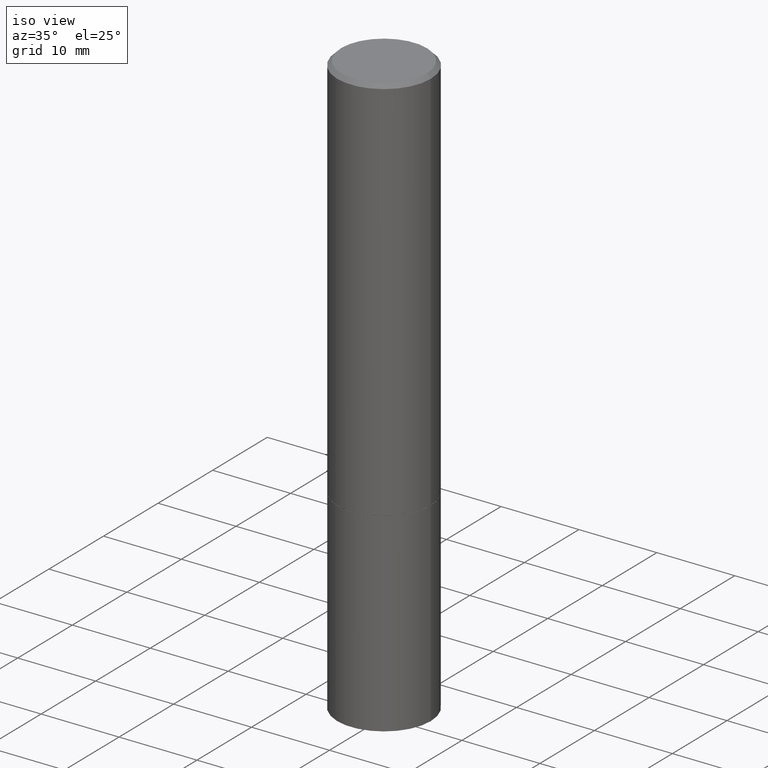
[diagram: clean part render]
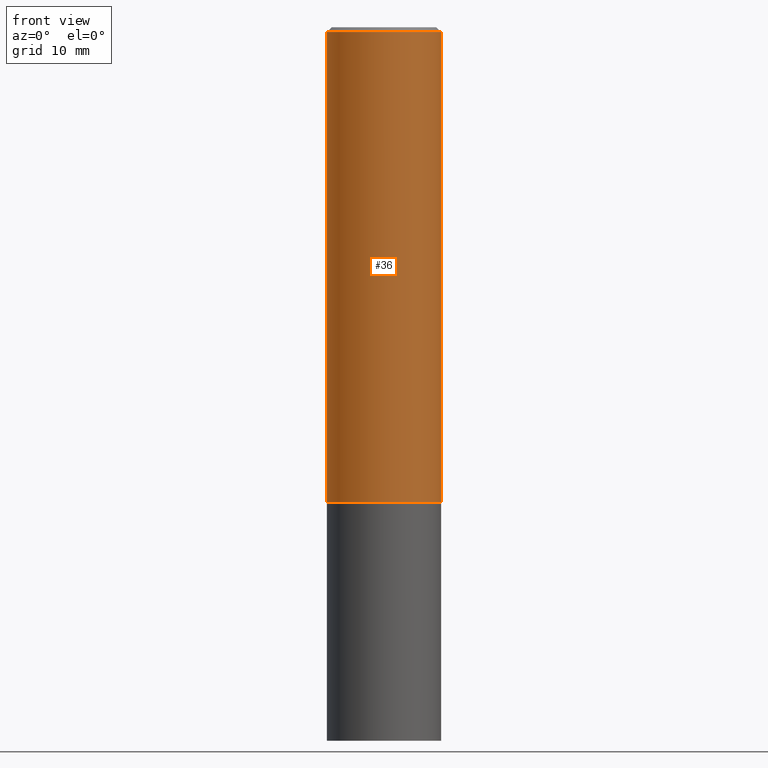
[diagram: tour spotlight — one face highlighted and labeled with its STEP entity id]
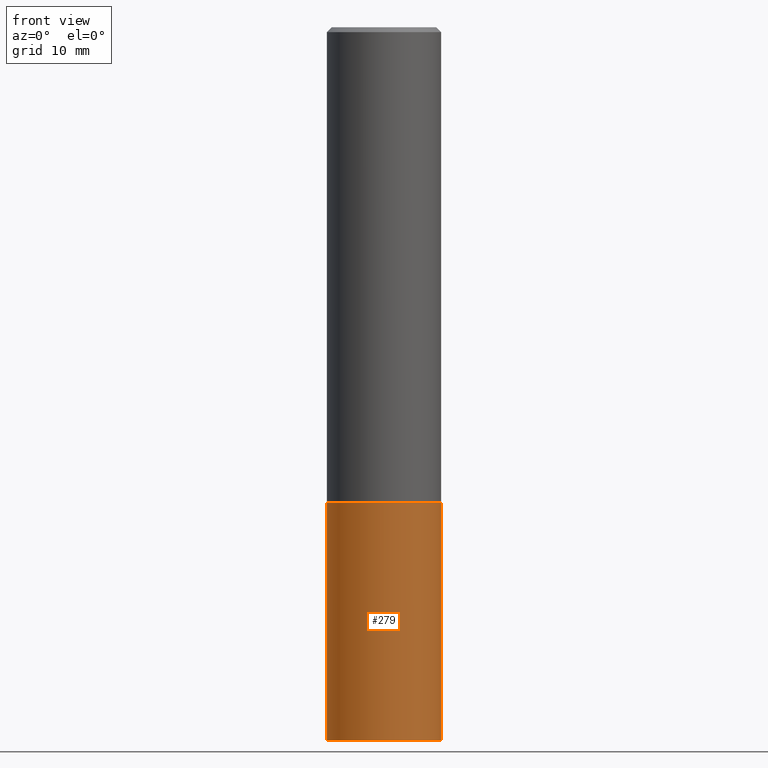
[diagram: tour spotlight — one face highlighted and labeled with its STEP entity id]
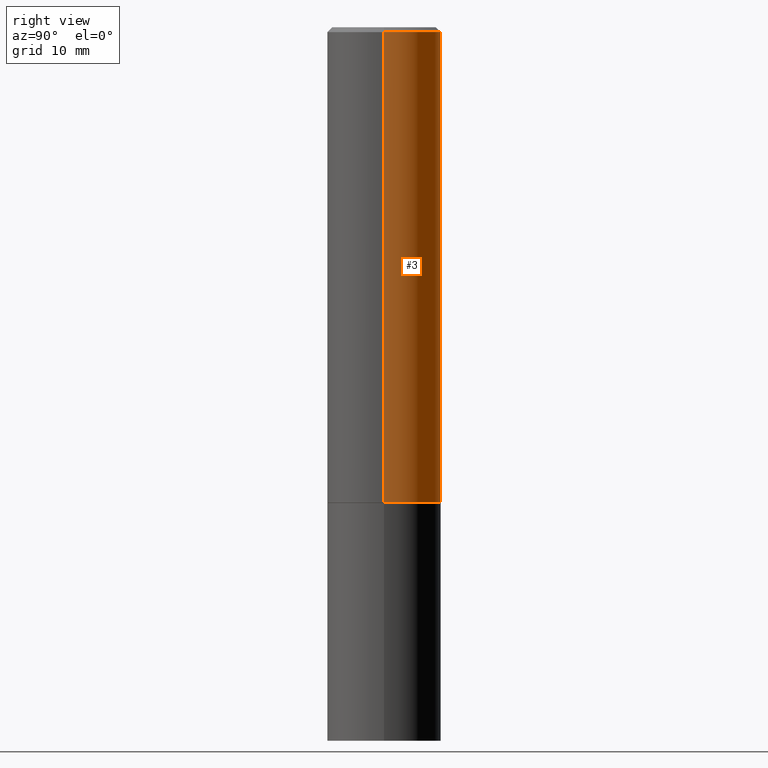
[diagram: tour spotlight — one face highlighted and labeled with its STEP entity id]
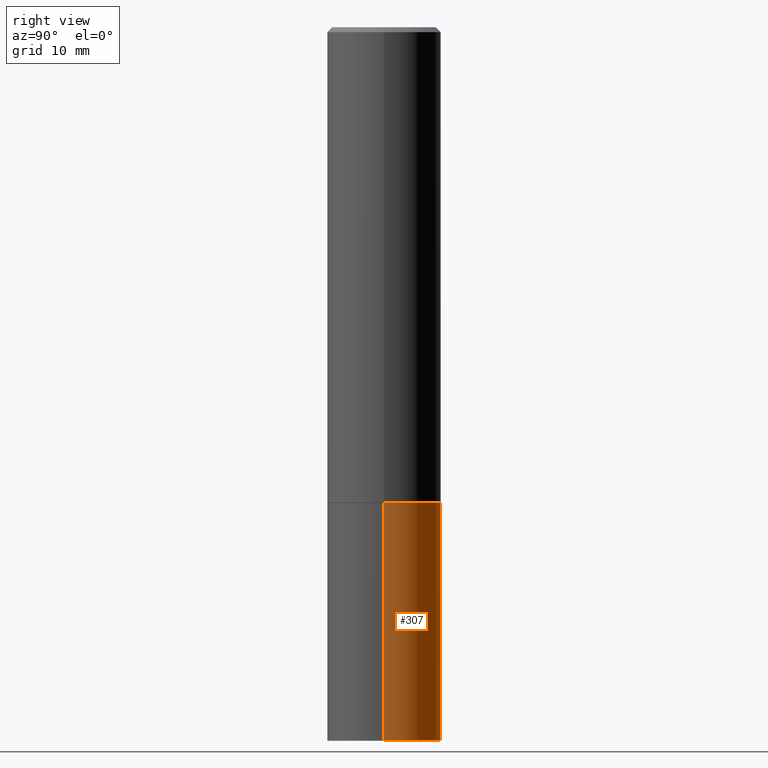
[diagram: tour spotlight — one face highlighted and labeled with its STEP entity id]
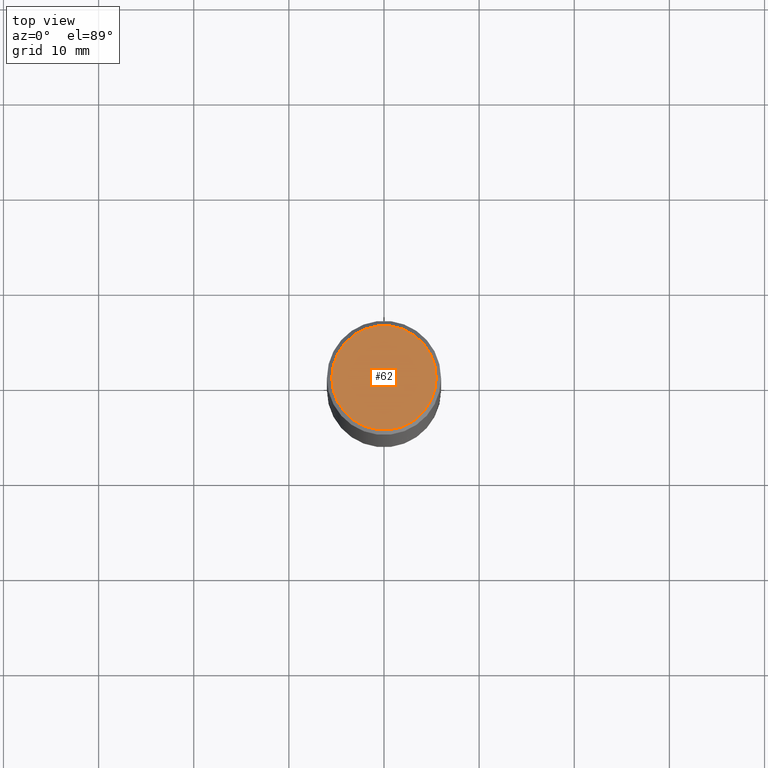
[diagram: tour spotlight — one face highlighted and labeled with its STEP entity id]
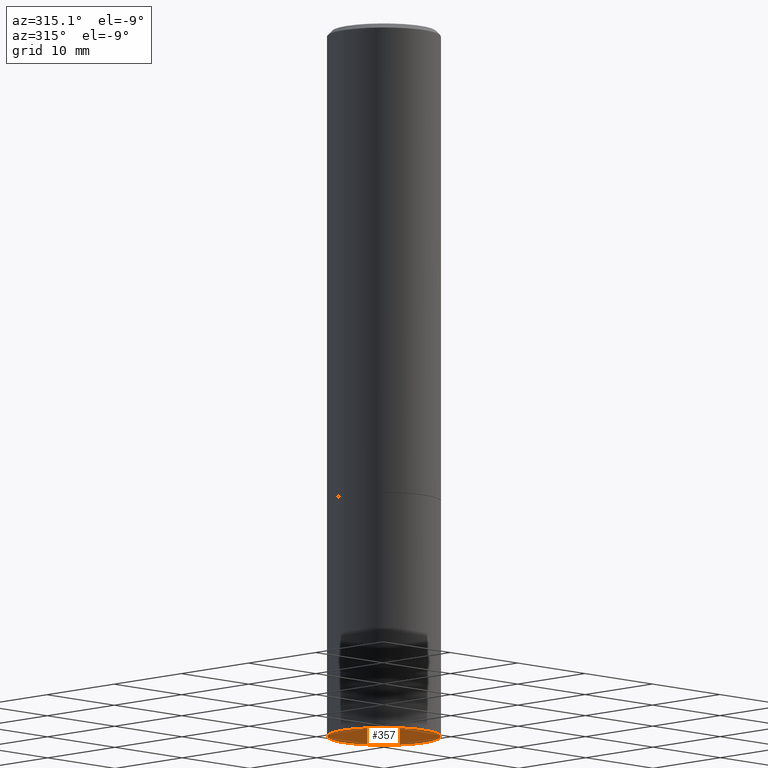
[diagram: tour spotlight — one face highlighted and labeled with its STEP entity id]
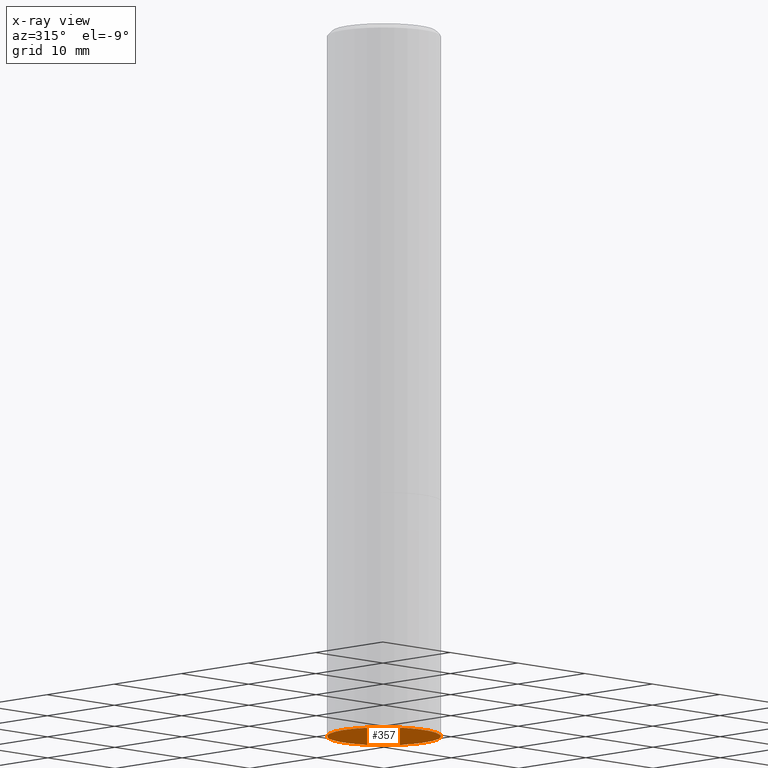
[diagram: x-ray of the same camera — body ghosted, this tour face saturated]
A machine part: a face-by-face anatomy tour. The part has 12 B-rep faces; the first image is the clean iso view, then the 6 largest visible faces are spotlighted one at a time (largest first), each with its STEP entity span.

Face 1 — front view, entity #36. In plain terms, the highlighted cylindrical surface (partial cylindrical patch) has radius 5.9995 mm, axis along (-0, 0, 1).
Definition (entity closure, byte-faithful):
#9 = LINE ( 'NONE', #290, #26 ) ;
#26 = VECTOR ( 'NONE', #119, 39.37007874015748143 ) ;
#36 = ADVANCED_FACE ( 'NONE', ( #64 ), #139, .T. ) ;
#49 = VERTEX_POINT ( 'NONE', #201 ) ;
#54 = CARTESIAN_POINT ( 'NONE',  ( -0.2361999999999999933, -1.791357638610017633E-15, -1.967499999999999805 ) ) ;
#57 = AXIS2_PLACEMENT_3D ( 'NONE', #90, #258, #323 ) ;
#64 = FACE_OUTER_BOUND ( 'NONE', #136, .T. ) ;
#65 = CIRCLE ( 'NONE', #235, 0.2361999999999999933 ) ;
#67 = DIRECTION ( 'NONE',  ( -2.445468806185136597E-29, 3.491481338843145583E-15, 1.000000000000000000 ) ) ;
#80 = EDGE_CURVE ( 'NONE', #251, #49, #351, .T. ) ;
#88 = EDGE_CURVE ( 'NONE', #324, #251, #9, .T. ) ;
#90 = CARTESIAN_POINT ( 'NONE',  ( 0.000000000000000000, 0.000000000000000000, 0.000000000000000000 ) ) ;
#106 = VERTEX_POINT ( 'NONE', #197 ) ;
#119 = DIRECTION ( 'NONE',  ( -2.445468806185136877E-29, 3.491481338843145188E-15, 1.000000000000000000 ) ) ;
#121 = LINE ( 'NONE', #124, #237 ) ;
#124 = CARTESIAN_POINT ( 'NONE',  ( 0.2361999999999998823, -1.649375784469495539E-15, 1.151752954442999528E-29 ) ) ;
#135 = EDGE_CURVE ( 'NONE', #324, #106, #65, .T. ) ;
#136 = EDGE_LOOP ( 'NONE', ( #242, #249, #364, #350 ) ) ;
#139 = CYLINDRICAL_SURFACE ( 'NONE', #57, 0.2361999999999998823 ) ;
#150 = DIRECTION ( 'NONE',  ( 1.000000000000000000, -6.982962677686266711E-15, 0.000000000000000000 ) ) ;
#185 = EDGE_CURVE ( 'NONE', #106, #49, #121, .T. ) ;
#197 = CARTESIAN_POINT ( 'NONE',  ( 0.2361999999999999933, -8.518865318643383648E-15, -1.967499999999999805 ) ) ;
#201 = CARTESIAN_POINT ( 'NONE',  ( 0.2361999999999997990, -1.690279253850497391E-15, -0.02000000000000007674 ) ) ;
#205 = DIRECTION ( 'NONE',  ( 1.000000000000000000, -6.982962677686269077E-15, 0.000000000000000000 ) ) ;
#235 = AXIS2_PLACEMENT_3D ( 'NONE', #333, #67, #205 ) ;
#237 = VECTOR ( 'NONE', #265, 39.37007874015748143 ) ;
#242 = ORIENTED_EDGE ( 'NONE', *, *, #88, .F. ) ;
#249 = ORIENTED_EDGE ( 'NONE', *, *, #135, .T. ) ;
#251 = VERTEX_POINT ( 'NONE', #310 ) ;
#254 = DIRECTION ( 'NONE',  ( -2.445468806185136597E-29, 3.491481338843145583E-15, 1.000000000000000000 ) ) ;
#258 = DIRECTION ( 'NONE',  ( -2.445468806185136597E-29, 3.491481338843145583E-15, 1.000000000000000000 ) ) ;
#261 = CARTESIAN_POINT ( 'NONE',  ( 4.890937612370292426E-31, -6.982962677686317493E-17, -0.02000000000000007674 ) ) ;
#265 = DIRECTION ( 'NONE',  ( -2.445468806185136877E-29, 3.491481338843145188E-15, 1.000000000000000000 ) ) ;
#276 = AXIS2_PLACEMENT_3D ( 'NONE', #261, #254, #150 ) ;
#290 = CARTESIAN_POINT ( 'NONE',  ( -0.2361999999999998823, 1.678301941865355803E-15, -1.161852468318208336E-29 ) ) ;
#310 = CARTESIAN_POINT ( 'NONE',  ( -0.2361999999999997990, 1.579546157692631649E-15, -0.02000000000000007674 ) ) ;
#323 = DIRECTION ( 'NONE',  ( 1.000000000000000000, -6.982962677686267499E-15, 4.876176775795936353E-29 ) ) ;
#324 = VERTEX_POINT ( 'NONE', #54 ) ;
#333 = CARTESIAN_POINT ( 'NONE',  ( 4.811459876169255671E-29, -6.869489534173887122E-15, -1.967499999999999805 ) ) ;
#350 = ORIENTED_EDGE ( 'NONE', *, *, #80, .F. ) ;
#351 = CIRCLE ( 'NONE', #276, 0.2361999999999997990 ) ;
#364 = ORIENTED_EDGE ( 'NONE', *, *, #185, .T. ) ;

Face 2 — front view, entity #279. In plain terms, the highlighted cylindrical surface (partial cylindrical patch) has radius 5.9995 mm, axis along (-0, 0, 1).
Definition (entity closure, byte-faithful):
#17 = DIRECTION ( 'NONE',  ( 1.000000000000000000, -6.982962677686265133E-15, 0.000000000000000000 ) ) ;
#24 = DIRECTION ( 'NONE',  ( -2.445468806185136877E-29, 3.491481338843145188E-15, 1.000000000000000000 ) ) ;
#27 = AXIS2_PLACEMENT_3D ( 'NONE', #320, #59, #230 ) ;
#29 = VERTEX_POINT ( 'NONE', #322 ) ;
#31 = LINE ( 'NONE', #147, #85 ) ;
#51 = CIRCLE ( 'NONE', #27, 0.2361999999999999933 ) ;
#55 = DIRECTION ( 'NONE',  ( 1.000000000000000000, -6.982962677686266711E-15, 4.876176775795936353E-29 ) ) ;
#59 = DIRECTION ( 'NONE',  ( -2.445468806185136597E-29, 3.491481338843145583E-15, 1.000000000000000000 ) ) ;
#61 = DIRECTION ( 'NONE',  ( -2.445468806185136877E-29, 3.491481338843145188E-15, 1.000000000000000000 ) ) ;
#72 = CYLINDRICAL_SURFACE ( 'NONE', #337, 0.2361999999999999933 ) ;
#73 = VERTEX_POINT ( 'NONE', #112 ) ;
#78 = EDGE_CURVE ( 'NONE', #141, #29, #346, .T. ) ;
#83 = DIRECTION ( 'NONE',  ( -2.445468806185136597E-29, 3.491481338843145583E-15, 1.000000000000000000 ) ) ;
#85 = VECTOR ( 'NONE', #24, 39.37007874015748143 ) ;
#93 = EDGE_CURVE ( 'NONE', #181, #73, #31, .T. ) ;
#104 = DIRECTION ( 'NONE',  ( -2.445468806185136597E-29, 3.491481338843145583E-15, 1.000000000000000000 ) ) ;
#112 = CARTESIAN_POINT ( 'NONE',  ( -0.2361999999999999933, -6.913011614559027935E-15, -1.968499999999999694 ) ) ;
#122 = ORIENTED_EDGE ( 'NONE', *, *, #78, .T. ) ;
#129 = FACE_OUTER_BOUND ( 'NONE', #339, .T. ) ;
#132 = CIRCLE ( 'NONE', #153, 0.2361999999999999933 ) ;
#141 = VERTEX_POINT ( 'NONE', #179 ) ;
#147 = CARTESIAN_POINT ( 'NONE',  ( -0.2361999999999999933, 1.678301941865356591E-15, -1.161852468318208757E-29 ) ) ;
#153 = AXIS2_PLACEMENT_3D ( 'NONE', #189, #104, #17 ) ;
#179 = CARTESIAN_POINT ( 'NONE',  ( 0.2361999999999999933, -1.195902188180553348E-14, -2.952799999999999869 ) ) ;
#181 = VERTEX_POINT ( 'NONE', #296 ) ;
#189 = CARTESIAN_POINT ( 'NONE',  ( 7.220980290903470182E-29, -1.030964609733603853E-14, -2.952799999999999869 ) ) ;
#225 = ORIENTED_EDGE ( 'NONE', *, *, #331, .F. ) ;
#230 = DIRECTION ( 'NONE',  ( 1.000000000000000000, -6.982962677686265133E-15, 0.000000000000000000 ) ) ;
#238 = EDGE_CURVE ( 'NONE', #181, #141, #132, .T. ) ;
#257 = ORIENTED_EDGE ( 'NONE', *, *, #93, .F. ) ;
#266 = VECTOR ( 'NONE', #61, 39.37007874015748143 ) ;
#279 = ADVANCED_FACE ( 'NONE', ( #129 ), #72, .T. ) ;
#292 = CARTESIAN_POINT ( 'NONE',  ( 0.2361999999999999933, -1.649375784469496131E-15, 1.151752954443000088E-29 ) ) ;
#296 = CARTESIAN_POINT ( 'NONE',  ( -0.2361999999999999933, -6.913011614559027935E-15, -2.952799999999999869 ) ) ;
#300 = ORIENTED_EDGE ( 'NONE', *, *, #238, .T. ) ;
#320 = CARTESIAN_POINT ( 'NONE',  ( 4.813905344975440714E-29, -6.872981015512730918E-15, -1.968499999999999694 ) ) ;
#322 = CARTESIAN_POINT ( 'NONE',  ( 0.2361999999999999933, -8.522356799982226655E-15, -1.968499999999999694 ) ) ;
#331 = EDGE_CURVE ( 'NONE', #73, #29, #51, .T. ) ;
#337 = AXIS2_PLACEMENT_3D ( 'NONE', #343, #83, #55 ) ;
#339 = EDGE_LOOP ( 'NONE', ( #257, #300, #122, #225 ) ) ;
#343 = CARTESIAN_POINT ( 'NONE',  ( 0.000000000000000000, 0.000000000000000000, 0.000000000000000000 ) ) ;
#346 = LINE ( 'NONE', #292, #266 ) ;

Face 3 — right view, entity #3. In plain terms, the highlighted cylindrical surface (partial cylindrical patch) has radius 5.9995 mm, axis along (-0, 0, 1).
Definition (entity closure, byte-faithful):
#3 = ADVANCED_FACE ( 'NONE', ( #285 ), #202, .T. ) ;
#9 = LINE ( 'NONE', #290, #26 ) ;
#20 = EDGE_CURVE ( 'NONE', #49, #251, #341, .T. ) ;
#26 = VECTOR ( 'NONE', #119, 39.37007874015748143 ) ;
#33 = AXIS2_PLACEMENT_3D ( 'NONE', #176, #344, #194 ) ;
#49 = VERTEX_POINT ( 'NONE', #201 ) ;
#50 = EDGE_LOOP ( 'NONE', ( #366, #280, #355, #309 ) ) ;
#54 = CARTESIAN_POINT ( 'NONE',  ( -0.2361999999999999933, -1.791357638610017633E-15, -1.967499999999999805 ) ) ;
#75 = AXIS2_PLACEMENT_3D ( 'NONE', #353, #154, #328 ) ;
#82 = DIRECTION ( 'NONE',  ( -2.445468806185136597E-29, 3.491481338843145583E-15, 1.000000000000000000 ) ) ;
#87 = CARTESIAN_POINT ( 'NONE',  ( 4.890937612370292426E-31, -6.982962677686317493E-17, -0.02000000000000007674 ) ) ;
#88 = EDGE_CURVE ( 'NONE', #324, #251, #9, .T. ) ;
#106 = VERTEX_POINT ( 'NONE', #197 ) ;
#119 = DIRECTION ( 'NONE',  ( -2.445468806185136877E-29, 3.491481338843145188E-15, 1.000000000000000000 ) ) ;
#121 = LINE ( 'NONE', #124, #237 ) ;
#124 = CARTESIAN_POINT ( 'NONE',  ( 0.2361999999999998823, -1.649375784469495539E-15, 1.151752954442999528E-29 ) ) ;
#154 = DIRECTION ( 'NONE',  ( -2.445468806185136597E-29, 3.491481338843145583E-15, 1.000000000000000000 ) ) ;
#176 = CARTESIAN_POINT ( 'NONE',  ( 0.000000000000000000, 0.000000000000000000, 0.000000000000000000 ) ) ;
#177 = AXIS2_PLACEMENT_3D ( 'NONE', #87, #82, #318 ) ;
#185 = EDGE_CURVE ( 'NONE', #106, #49, #121, .T. ) ;
#191 = EDGE_CURVE ( 'NONE', #106, #324, #270, .T. ) ;
#194 = DIRECTION ( 'NONE',  ( 1.000000000000000000, -6.982962677686267499E-15, 4.876176775795936353E-29 ) ) ;
#197 = CARTESIAN_POINT ( 'NONE',  ( 0.2361999999999999933, -8.518865318643383648E-15, -1.967499999999999805 ) ) ;
#201 = CARTESIAN_POINT ( 'NONE',  ( 0.2361999999999997990, -1.690279253850497391E-15, -0.02000000000000007674 ) ) ;
#202 = CYLINDRICAL_SURFACE ( 'NONE', #33, 0.2361999999999998823 ) ;
#237 = VECTOR ( 'NONE', #265, 39.37007874015748143 ) ;
#251 = VERTEX_POINT ( 'NONE', #310 ) ;
#265 = DIRECTION ( 'NONE',  ( -2.445468806185136877E-29, 3.491481338843145188E-15, 1.000000000000000000 ) ) ;
#270 = CIRCLE ( 'NONE', #75, 0.2361999999999999933 ) ;
#280 = ORIENTED_EDGE ( 'NONE', *, *, #88, .T. ) ;
#285 = FACE_OUTER_BOUND ( 'NONE', #50, .T. ) ;
#290 = CARTESIAN_POINT ( 'NONE',  ( -0.2361999999999998823, 1.678301941865355803E-15, -1.161852468318208336E-29 ) ) ;
#309 = ORIENTED_EDGE ( 'NONE', *, *, #185, .F. ) ;
#310 = CARTESIAN_POINT ( 'NONE',  ( -0.2361999999999997990, 1.579546157692631649E-15, -0.02000000000000007674 ) ) ;
#318 = DIRECTION ( 'NONE',  ( 1.000000000000000000, -6.982962677686266711E-15, 0.000000000000000000 ) ) ;
#324 = VERTEX_POINT ( 'NONE', #54 ) ;
#328 = DIRECTION ( 'NONE',  ( 1.000000000000000000, -6.982962677686269077E-15, 0.000000000000000000 ) ) ;
#341 = CIRCLE ( 'NONE', #177, 0.2361999999999997990 ) ;
#344 = DIRECTION ( 'NONE',  ( -2.445468806185136597E-29, 3.491481338843145583E-15, 1.000000000000000000 ) ) ;
#353 = CARTESIAN_POINT ( 'NONE',  ( 4.811459876169255671E-29, -6.869489534173887122E-15, -1.967499999999999805 ) ) ;
#355 = ORIENTED_EDGE ( 'NONE', *, *, #20, .F. ) ;
#366 = ORIENTED_EDGE ( 'NONE', *, *, #191, .T. ) ;

Face 4 — right view, entity #307. In plain terms, the highlighted cylindrical surface (partial cylindrical patch) has radius 5.9995 mm, axis along (-0, 0, 1).
Definition (entity closure, byte-faithful):
#4 = DIRECTION ( 'NONE',  ( 1.000000000000000000, -6.982962677686266711E-15, 4.876176775795936353E-29 ) ) ;
#15 = CIRCLE ( 'NONE', #123, 0.2361999999999999933 ) ;
#24 = DIRECTION ( 'NONE',  ( -2.445468806185136877E-29, 3.491481338843145188E-15, 1.000000000000000000 ) ) ;
#29 = VERTEX_POINT ( 'NONE', #322 ) ;
#31 = LINE ( 'NONE', #147, #85 ) ;
#61 = DIRECTION ( 'NONE',  ( -2.445468806185136877E-29, 3.491481338843145188E-15, 1.000000000000000000 ) ) ;
#73 = VERTEX_POINT ( 'NONE', #112 ) ;
#77 = CARTESIAN_POINT ( 'NONE',  ( 7.220980290903470182E-29, -1.030964609733603853E-14, -2.952799999999999869 ) ) ;
#78 = EDGE_CURVE ( 'NONE', #141, #29, #346, .T. ) ;
#85 = VECTOR ( 'NONE', #24, 39.37007874015748143 ) ;
#93 = EDGE_CURVE ( 'NONE', #181, #73, #31, .T. ) ;
#108 = AXIS2_PLACEMENT_3D ( 'NONE', #232, #250, #281 ) ;
#112 = CARTESIAN_POINT ( 'NONE',  ( -0.2361999999999999933, -6.913011614559027935E-15, -1.968499999999999694 ) ) ;
#123 = AXIS2_PLACEMENT_3D ( 'NONE', #77, #188, #308 ) ;
#134 = CYLINDRICAL_SURFACE ( 'NONE', #330, 0.2361999999999999933 ) ;
#141 = VERTEX_POINT ( 'NONE', #179 ) ;
#143 = CARTESIAN_POINT ( 'NONE',  ( 0.000000000000000000, 0.000000000000000000, 0.000000000000000000 ) ) ;
#145 = ORIENTED_EDGE ( 'NONE', *, *, #78, .F. ) ;
#147 = CARTESIAN_POINT ( 'NONE',  ( -0.2361999999999999933, 1.678301941865356591E-15, -1.161852468318208757E-29 ) ) ;
#161 = EDGE_LOOP ( 'NONE', ( #218, #298, #173, #145 ) ) ;
#173 = ORIENTED_EDGE ( 'NONE', *, *, #335, .F. ) ;
#179 = CARTESIAN_POINT ( 'NONE',  ( 0.2361999999999999933, -1.195902188180553348E-14, -2.952799999999999869 ) ) ;
#181 = VERTEX_POINT ( 'NONE', #296 ) ;
#188 = DIRECTION ( 'NONE',  ( -2.445468806185136597E-29, 3.491481338843145583E-15, 1.000000000000000000 ) ) ;
#217 = CIRCLE ( 'NONE', #108, 0.2361999999999999933 ) ;
#218 = ORIENTED_EDGE ( 'NONE', *, *, #252, .T. ) ;
#232 = CARTESIAN_POINT ( 'NONE',  ( 4.813905344975440714E-29, -6.872981015512730918E-15, -1.968499999999999694 ) ) ;
#250 = DIRECTION ( 'NONE',  ( -2.445468806185136597E-29, 3.491481338843145583E-15, 1.000000000000000000 ) ) ;
#252 = EDGE_CURVE ( 'NONE', #141, #181, #15, .T. ) ;
#253 = FACE_OUTER_BOUND ( 'NONE', #161, .T. ) ;
#266 = VECTOR ( 'NONE', #61, 39.37007874015748143 ) ;
#281 = DIRECTION ( 'NONE',  ( 1.000000000000000000, -6.982962677686265133E-15, 0.000000000000000000 ) ) ;
#286 = DIRECTION ( 'NONE',  ( -2.445468806185136597E-29, 3.491481338843145583E-15, 1.000000000000000000 ) ) ;
#292 = CARTESIAN_POINT ( 'NONE',  ( 0.2361999999999999933, -1.649375784469496131E-15, 1.151752954443000088E-29 ) ) ;
#296 = CARTESIAN_POINT ( 'NONE',  ( -0.2361999999999999933, -6.913011614559027935E-15, -2.952799999999999869 ) ) ;
#298 = ORIENTED_EDGE ( 'NONE', *, *, #93, .T. ) ;
#307 = ADVANCED_FACE ( 'NONE', ( #253 ), #134, .T. ) ;
#308 = DIRECTION ( 'NONE',  ( 1.000000000000000000, -6.982962677686265133E-15, 0.000000000000000000 ) ) ;
#322 = CARTESIAN_POINT ( 'NONE',  ( 0.2361999999999999933, -8.522356799982226655E-15, -1.968499999999999694 ) ) ;
#330 = AXIS2_PLACEMENT_3D ( 'NONE', #143, #286, #4 ) ;
#335 = EDGE_CURVE ( 'NONE', #29, #73, #217, .T. ) ;
#346 = LINE ( 'NONE', #292, #266 ) ;

Face 5 — top view, entity #62. In plain terms, the highlighted planar face has unit normal (0, -0, -1).
Definition (entity closure, byte-faithful):
#5 = CARTESIAN_POINT ( 'NONE',  ( -1.043851414335219820E-46, 1.490343170380447200E-32, 4.268512490100411279E-18 ) ) ;
#6 = DIRECTION ( 'NONE',  ( -1.000000000000000000, 6.982962677686265922E-15, -4.876176775795935793E-29 ) ) ;
#14 = CIRCLE ( 'NONE', #221, 0.2161999999999997535 ) ;
#18 = VERTEX_POINT ( 'NONE', #117 ) ;
#28 = DIRECTION ( 'NONE',  ( 1.000000000000000000, -6.982962677686267499E-15, 4.876217060660161280E-29 ) ) ;
#45 = ORIENTED_EDGE ( 'NONE', *, *, #195, .T. ) ;
#62 = ADVANCED_FACE ( 'NONE', ( #172 ), #256, .F. ) ;
#70 = CARTESIAN_POINT ( 'NONE',  ( 0.2161999999999997535, -1.586759460484350410E-15, 4.268512490111238857E-18 ) ) ;
#100 = EDGE_CURVE ( 'NONE', #151, #18, #14, .T. ) ;
#105 = CIRCLE ( 'NONE', #115, 0.2161999999999997535 ) ;
#110 = DIRECTION ( 'NONE',  ( -2.445468806185136597E-29, 3.491481338843145583E-15, 1.000000000000000000 ) ) ;
#115 = AXIS2_PLACEMENT_3D ( 'NONE', #156, #234, #349 ) ;
#117 = CARTESIAN_POINT ( 'NONE',  ( -0.2161999999999997535, 1.544631344304200395E-15, 4.268512490089730842E-18 ) ) ;
#144 = DIRECTION ( 'NONE',  ( 2.438088387897960049E-29, -3.491481338843145188E-15, -1.000000000000000000 ) ) ;
#151 = VERTEX_POINT ( 'NONE', #70 ) ;
#156 = CARTESIAN_POINT ( 'NONE',  ( -1.043851414335219820E-46, 1.490343170380447200E-32, 4.268512490100411279E-18 ) ) ;
#167 = CARTESIAN_POINT ( 'NONE',  ( 1.509716530915769140E-15, 0.2161999999999997535, -7.527240092128371176E-16 ) ) ;
#172 = FACE_OUTER_BOUND ( 'NONE', #206, .T. ) ;
#195 = EDGE_CURVE ( 'NONE', #18, #151, #105, .T. ) ;
#206 = EDGE_LOOP ( 'NONE', ( #45, #314 ) ) ;
#221 = AXIS2_PLACEMENT_3D ( 'NONE', #5, #110, #28 ) ;
#234 = DIRECTION ( 'NONE',  ( -2.445468806185136597E-29, 3.491481338843145583E-15, 1.000000000000000000 ) ) ;
#256 = PLANE ( 'NONE',  #336 ) ;
#314 = ORIENTED_EDGE ( 'NONE', *, *, #100, .T. ) ;
#336 = AXIS2_PLACEMENT_3D ( 'NONE', #167, #144, #6 ) ;
#349 = DIRECTION ( 'NONE',  ( 1.000000000000000000, -6.982962677686267499E-15, 4.876217060660161280E-29 ) ) ;

Face 6 — auxiliary view, entity #357. An x-ray twin of the same camera follows (body ghosted, this face saturated) — the face is partly hidden behind the body. In plain terms, the highlighted planar face has unit normal (0, -0, -1).
Definition (entity closure, byte-faithful):
#15 = CIRCLE ( 'NONE', #123, 0.2361999999999999933 ) ;
#17 = DIRECTION ( 'NONE',  ( 1.000000000000000000, -6.982962677686265133E-15, 0.000000000000000000 ) ) ;
#22 = EDGE_LOOP ( 'NONE', ( #203, #164 ) ) ;
#77 = CARTESIAN_POINT ( 'NONE',  ( 7.220980290903470182E-29, -1.030964609733603853E-14, -2.952799999999999869 ) ) ;
#104 = DIRECTION ( 'NONE',  ( -2.445468806185136597E-29, 3.491481338843145583E-15, 1.000000000000000000 ) ) ;
#123 = AXIS2_PLACEMENT_3D ( 'NONE', #77, #188, #308 ) ;
#132 = CIRCLE ( 'NONE', #153, 0.2361999999999999933 ) ;
#137 = FACE_OUTER_BOUND ( 'NONE', #22, .T. ) ;
#141 = VERTEX_POINT ( 'NONE', #179 ) ;
#153 = AXIS2_PLACEMENT_3D ( 'NONE', #189, #104, #17 ) ;
#164 = ORIENTED_EDGE ( 'NONE', *, *, #238, .F. ) ;
#168 = CARTESIAN_POINT ( 'NONE',  ( 1.649375784469568312E-15, 0.2361999999999896960, -2.952800000000000757 ) ) ;
#179 = CARTESIAN_POINT ( 'NONE',  ( 0.2361999999999999933, -1.195902188180553348E-14, -2.952799999999999869 ) ) ;
#181 = VERTEX_POINT ( 'NONE', #296 ) ;
#188 = DIRECTION ( 'NONE',  ( -2.445468806185136597E-29, 3.491481338843145583E-15, 1.000000000000000000 ) ) ;
#189 = CARTESIAN_POINT ( 'NONE',  ( 7.220980290903470182E-29, -1.030964609733603853E-14, -2.952799999999999869 ) ) ;
#203 = ORIENTED_EDGE ( 'NONE', *, *, #252, .F. ) ;
#238 = EDGE_CURVE ( 'NONE', #181, #141, #132, .T. ) ;
#252 = EDGE_CURVE ( 'NONE', #141, #181, #15, .T. ) ;
#283 = DIRECTION ( 'NONE',  ( 2.438088387897960049E-29, -3.491481338843145188E-15, -1.000000000000000000 ) ) ;
#296 = CARTESIAN_POINT ( 'NONE',  ( -0.2361999999999999933, -6.913011614559027935E-15, -2.952799999999999869 ) ) ;
#308 = DIRECTION ( 'NONE',  ( 1.000000000000000000, -6.982962677686265133E-15, 0.000000000000000000 ) ) ;
#317 = PLANE ( 'NONE',  #360 ) ;
#357 = ADVANCED_FACE ( 'NONE', ( #137 ), #317, .T. ) ;
#360 = AXIS2_PLACEMENT_3D ( 'NONE', #168, #283, #365 ) ;
#365 = DIRECTION ( 'NONE',  ( -1.000000000000000000, 6.982962677686265922E-15, -4.876176775795935793E-29 ) ) ;